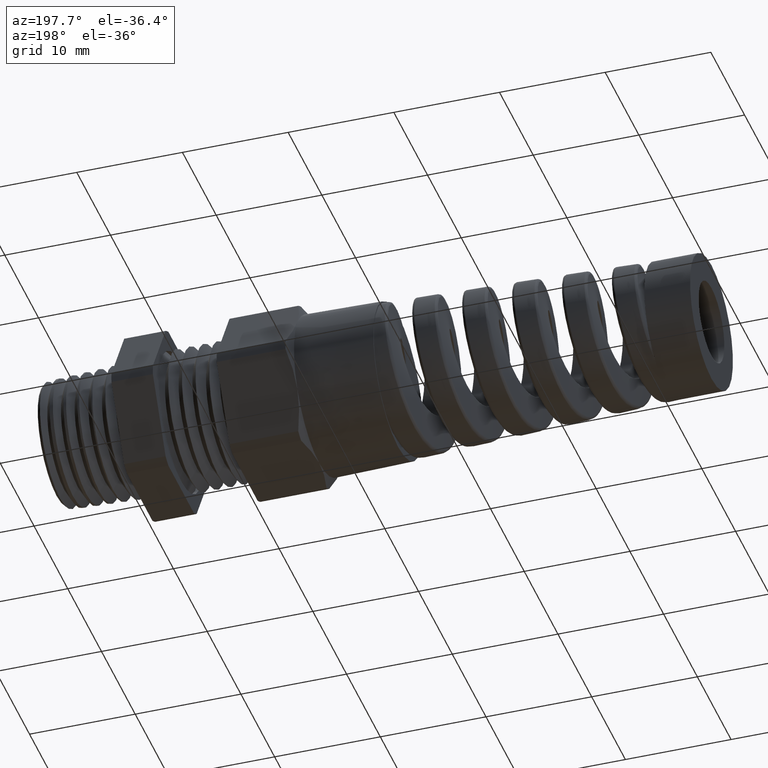
[diagram: clean part render]
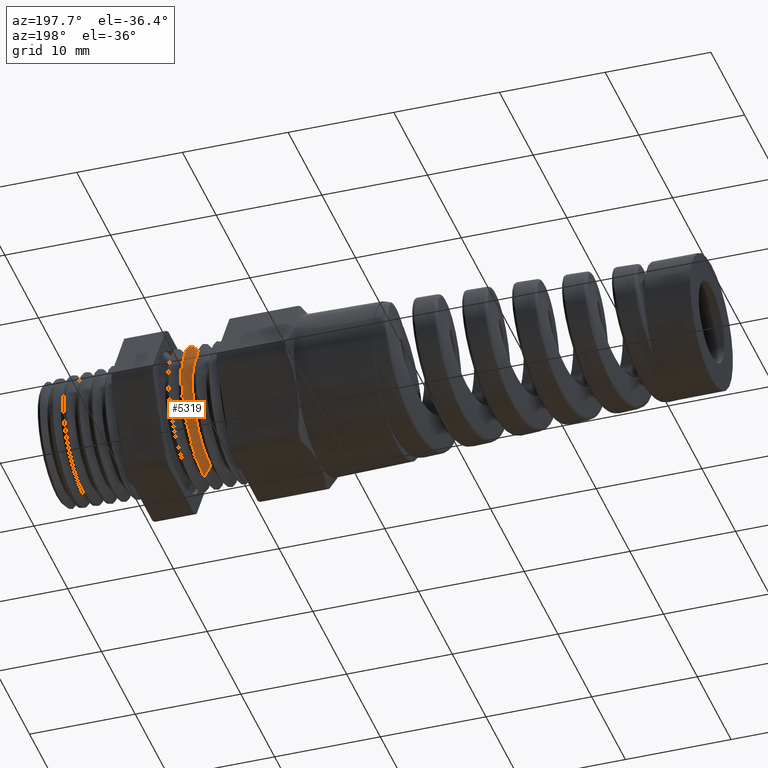
[diagram: same view with one face highlighted and labeled with its STEP entity id]
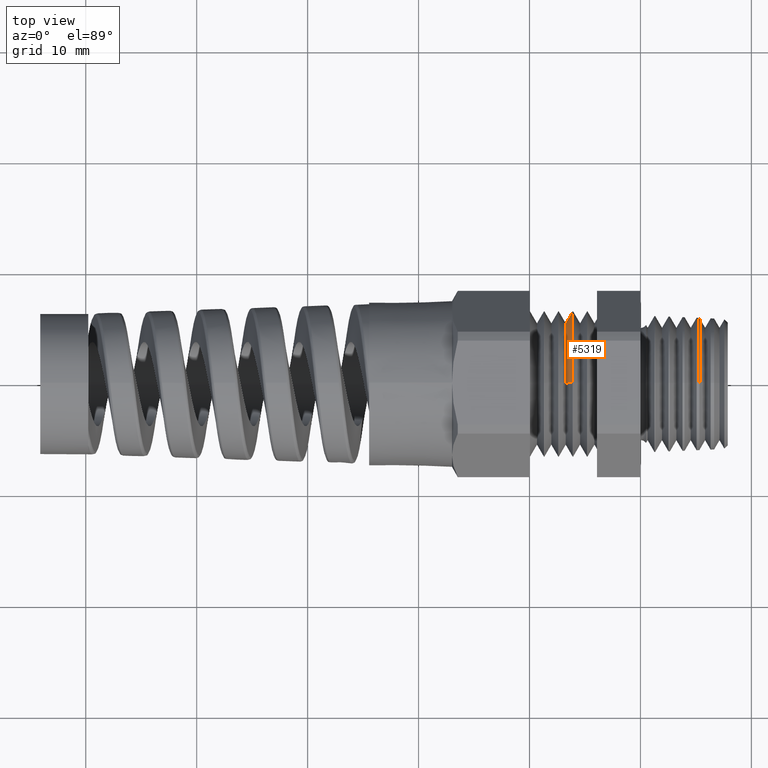
[diagram: same view with one face highlighted and labeled with its STEP entity id]
A machine part, auxiliary view. The second image highlights one B-rep face of the part: STEP entity #5319.
A second angle (top view) of the same face is appended — the face is thin or edge-on in the first view.
In plain terms, the highlighted conical surface has half-angle 60 deg.
Its self-contained STEP definition (entity closure, byte-faithful):
#375 = VERTEX_POINT ( 'NONE', #8008 ) ;
#378 = VERTEX_POINT ( 'NONE', #8038 ) ;
#458 = EDGE_CURVE ( 'NONE', #375, #378, #8340, .T. ) ;
#2825 = CARTESIAN_POINT ( 'NONE',  ( -0.2400833566458394600, 0.0000000000000000000, 0.2596999999999999900 ) ) ;
#2848 = DIRECTION ( 'NONE',  ( 0.4999999999999960000, 1.060575238724909600E-016, 0.8660254037844409300 ) ) ;
#2849 = VECTOR ( 'NONE', #2848, 39.37007874015748100 ) ;
#2850 = CARTESIAN_POINT ( 'NONE',  ( -0.2650833449895864700, 2.650120365269882500E-017, 0.2163987499999999500 ) ) ;
#2851 = LINE ( 'NONE', #2850, #2849 ) ;
#5312 = EDGE_CURVE ( 'NONE', #375, #5341, #9268, .T. ) ;
#5315 = ORIENTED_EDGE ( 'NONE', *, *, #5312, .F. ) ;
#5319 = ADVANCED_FACE ( 'NONE', ( #9249 ), #9244, .T. ) ;
#5320 = EDGE_LOOP ( 'NONE', ( #9742, #9651, #5339, #5315 ) ) ;
#5339 = ORIENTED_EDGE ( 'NONE', *, *, #5397, .F. ) ;
#5341 = VERTEX_POINT ( 'NONE', #9280 ) ;
#5397 = EDGE_CURVE ( 'NONE', #5341, #9637, #9434, .T. ) ;
#8008 = CARTESIAN_POINT ( 'NONE',  ( -0.2650833449895864700, 0.0000000000000000000, -0.2163987499999999500 ) ) ;
#8038 = CARTESIAN_POINT ( 'NONE',  ( -0.2650833449895864700, 2.915264051327779200E-017, 0.2163987499999999500 ) ) ;
#8336 = DIRECTION ( 'NONE',  ( 0.0000000000000000000, 0.0000000000000000000, -1.000000000000000000 ) ) ;
#8337 = DIRECTION ( 'NONE',  ( 1.000000000000000000, 0.0000000000000000000, 0.0000000000000000000 ) ) ;
#8338 = CARTESIAN_POINT ( 'NONE',  ( -0.2650833449895864700, 0.0000000000000000000, 0.0000000000000000000 ) ) ;
#8339 = AXIS2_PLACEMENT_3D ( 'NONE', #8338, #8337, #8336 ) ;
#8340 = CIRCLE ( 'NONE', #8339, 0.2163987499999999500 ) ;
#9240 = DIRECTION ( 'NONE',  ( 0.0000000000000000000, 0.0000000000000000000, -1.000000000000000000 ) ) ;
#9241 = DIRECTION ( 'NONE',  ( 1.000000000000000000, 0.0000000000000000000, 0.0000000000000000000 ) ) ;
#9242 = CARTESIAN_POINT ( 'NONE',  ( -0.2650833449895864700, 0.0000000000000000000, 0.0000000000000000000 ) ) ;
#9243 = AXIS2_PLACEMENT_3D ( 'NONE', #9242, #9241, #9240 ) ;
#9244 = CONICAL_SURFACE ( 'NONE', #9243, 0.2163987499999999500, 1.047197551196602300 ) ;
#9249 = FACE_OUTER_BOUND ( 'NONE', #5320, .T. ) ;
#9265 = DIRECTION ( 'NONE',  ( 0.4999999999999960000, 0.0000000000000000000, -0.8660254037844409300 ) ) ;
#9266 = VECTOR ( 'NONE', #9265, 39.37007874015748100 ) ;
#9267 = CARTESIAN_POINT ( 'NONE',  ( -0.2650833449895864700, 0.0000000000000000000, -0.2163987499999999500 ) ) ;
#9268 = LINE ( 'NONE', #9267, #9266 ) ;
#9280 = CARTESIAN_POINT ( 'NONE',  ( -0.2400833566458394600, 3.180407737385675900E-017, -0.2596999999999999900 ) ) ;
#9430 = DIRECTION ( 'NONE',  ( 0.0000000000000000000, 0.0000000000000000000, -1.000000000000000000 ) ) ;
#9431 = DIRECTION ( 'NONE',  ( 1.000000000000000000, 0.0000000000000000000, 0.0000000000000000000 ) ) ;
#9432 = CARTESIAN_POINT ( 'NONE',  ( -0.2400833566458394600, 0.0000000000000000000, 0.0000000000000000000 ) ) ;
#9433 = AXIS2_PLACEMENT_3D ( 'NONE', #9432, #9431, #9430 ) ;
#9434 = CIRCLE ( 'NONE', #9433, 0.2596999999999999900 ) ;
#9637 = VERTEX_POINT ( 'NONE', #2825 ) ;
#9651 = ORIENTED_EDGE ( 'NONE', *, *, #9663, .T. ) ;
#9663 = EDGE_CURVE ( 'NONE', #378, #9637, #2851, .T. ) ;
#9742 = ORIENTED_EDGE ( 'NONE', *, *, #458, .T. ) ;